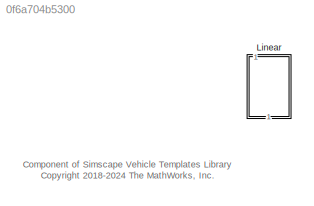
MODEL slx_0f6a704b5300
KIND library
CONFIG AbsTol = auto
CONFIG EnableMultiTasking = off
CONFIG FixedStep = auto
CONFIG MaxStep = auto
CONFIG MinStep = auto
CONFIG RelTol = 1e-3
CONFIG SampleTimeConstraint = Unconstrained
CONFIG SolverName = VariableStepAuto
CONFIG StartTime = 0.0
CONFIG StopTime = 10.0
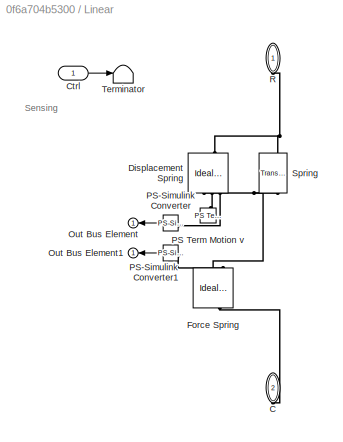
BLOCK [SubSystem] Linear
  NameLocation = right
  VariantControl = Linear
BLOCK [PMIOPort] Linear/C
  NameLocation = right
  Port = 2
  Side = Right
BLOCK [Inport] Linear/Ctrl
BLOCK [Reference] Linear/Displacement Spring  REF=fl_lib/Mechanical/Mechanical Sensors/Ideal Translational
Motion Sensor
  NameLocation = left
  SourceBlock = fl_lib/Mechanical/Mechanical Sensors/Ideal Translational\nMotion Sensor
  SourceType = Ideal Translational\nMotion Sensor
BLOCK [Reference] Linear/Force Spring  REF=fl_lib/Mechanical/Mechanical Sensors/Ideal Force Sensor
  NameLocation = left
  SourceBlock = fl_lib/Mechanical/Mechanical Sensors/Ideal Force Sensor
  SourceType = Ideal Force Sensor
BLOCK [Outport] Linear/Out Bus Element
  NameLocation = top
  VectorParamsAs1DForOutWhenUnconnected = off
BLOCK [Outport] Linear/Out Bus Element1
  NameLocation = top
  VectorParamsAs1DForOutWhenUnconnected = off
BLOCK [Reference] Linear/PS Term Motion v  REF=fl_lib/Physical Signals/Sinks/PS Terminator
  NameLocation = right
  SourceBlock = fl_lib/Physical Signals/Sinks/PS Terminator
  SourceType = PS Terminator
BLOCK [Reference] Linear/PS-Simulink Converter  REF=nesl_utility/PS-Simulink
Converter
  NameLocation = top
  SourceBlock = nesl_utility/PS-Simulink\nConverter
  SourceType = PS-Simulink\nConverter
BLOCK [Reference] Linear/PS-Simulink Converter1  REF=nesl_utility/PS-Simulink
Converter
  NameLocation = top
  SourceBlock = nesl_utility/PS-Simulink\nConverter
  SourceType = PS-Simulink\nConverter
BLOCK [PMIOPort] Linear/R
  NameLocation = right
  Side = Left
BLOCK [Reference] Linear/Spring  REF=fl_lib/Mechanical/Translational
Elements/Translational Spring
  NameLocation = right
  SourceBlock = fl_lib/Mechanical/Translational\nElements/Translational Spring
  SourceType = Translational Spring
BLOCK [Terminator] Linear/Terminator
ANNOTATION (root): Component of Simscape Vehicle Templates Library <copyright redacted>
ANNOTATION Linear: Sensing
LINE Linear/Ctrl:1 -> Linear/Terminator:1
LINE Linear/PS-Simulink Converter1:1 -> Linear/Out Bus Element1:1
LINE Linear/PS-Simulink Converter:1 -> Linear/Out Bus Element:1
PLINE Linear/C:RConn1 -- Linear/Force Spring:LConn1
PNET net1: Linear/Displacement Spring:LConn1 -- Linear/R:RConn1 -- Linear/Spring:LConn1
PNET net2: Linear/Displacement Spring:RConn1 -- Linear/Force Spring:RConn1 -- Linear/Spring:RConn1
PLINE Linear/Displacement Spring:RConn2 -- Linear/PS Term Motion v:LConn1
PLINE Linear/Displacement Spring:RConn3 -- Linear/PS-Simulink Converter:LConn1
PLINE Linear/Force Spring:RConn2 -- Linear/PS-Simulink Converter1:LConn1
note: PNET lines group multi-terminal physical nets as a canonical sorted terminal list (undirected conserving connections); 2-terminal nets keep the pairwise PLINE form
